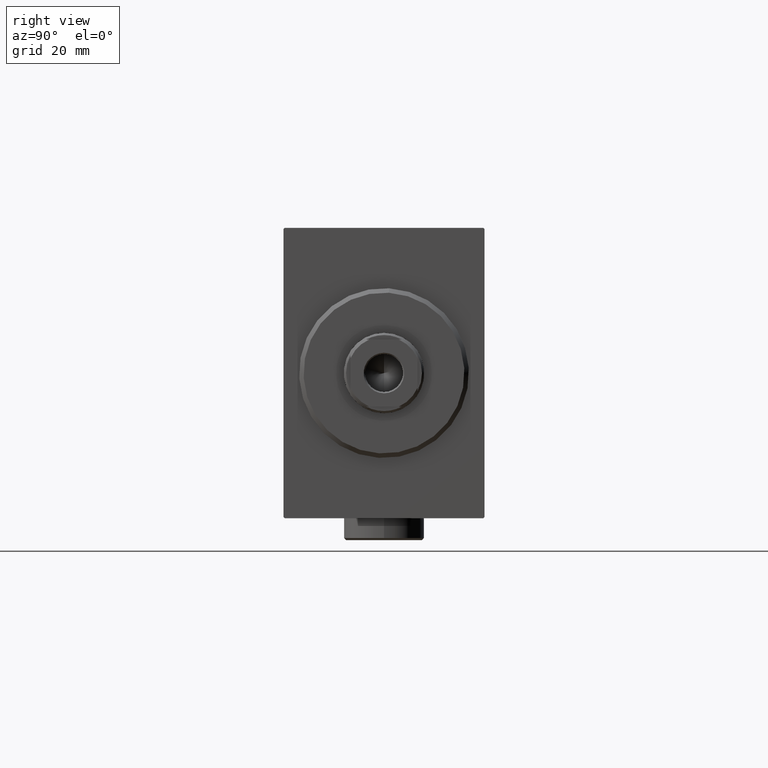
[diagram: clean part render]
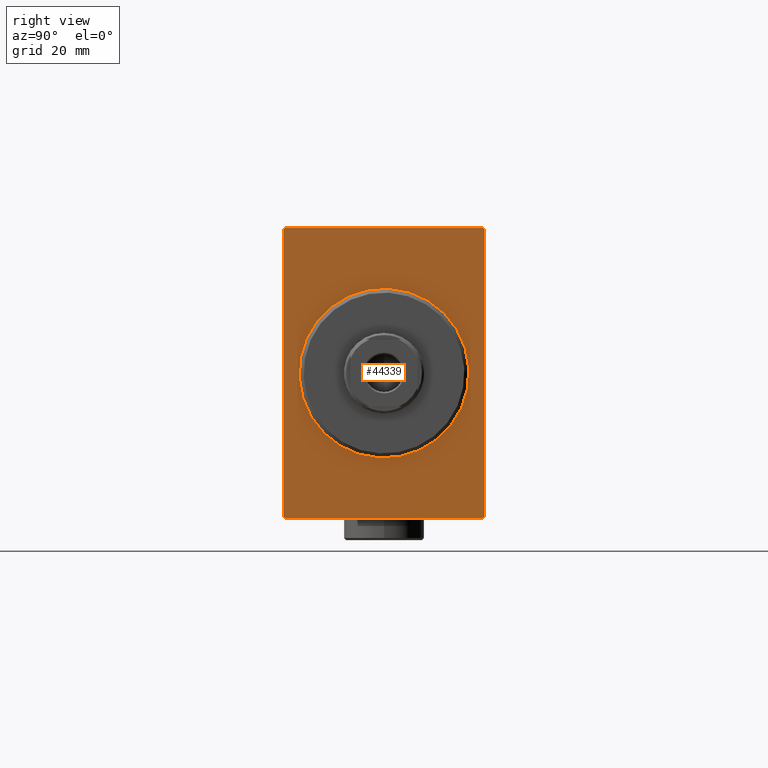
[diagram: same view with one face highlighted and labeled with its STEP entity id]
A machine part, right view. The second image highlights one B-rep face of the part: STEP entity #44339.
In plain terms, the highlighted planar face has unit normal (-1, -0, 0).
Its self-contained STEP definition (entity closure, byte-faithful):
#38 = CIRCLE ( 'NONE', #25201, 18.50000000000003197 ) ;
#288 = AXIS2_PLACEMENT_3D ( 'NONE', #40608, #20342, #31574 ) ;
#663 = DIRECTION ( 'NONE',  ( 0.000000000000000000, -0.7071067811865474617, -0.7071067811865474617 ) ) ;
#1535 = VERTEX_POINT ( 'NONE', #21677 ) ;
#1566 = ORIENTED_EDGE ( 'NONE', *, *, #33677, .F. ) ;
#2368 = EDGE_CURVE ( 'NONE', #28749, #8413, #19660, .T. ) ;
#2793 = PLANE ( 'NONE',  #288 ) ;
#2922 = CARTESIAN_POINT ( 'NONE',  ( 0.000000000000000000, -22.20000000000001350, -32.50000000000000000 ) ) ;
#3323 = ORIENTED_EDGE ( 'NONE', *, *, #39690, .F. ) ;
#4311 = CARTESIAN_POINT ( 'NONE',  ( 0.000000000000000000, 22.20000000000000639, -32.50000000000000000 ) ) ;
#4458 = VERTEX_POINT ( 'NONE', #12300 ) ;
#5659 = ORIENTED_EDGE ( 'NONE', *, *, #27980, .T. ) ;
#6173 = FACE_OUTER_BOUND ( 'NONE', #40281, .T. ) ;
#6246 = CARTESIAN_POINT ( 'NONE',  ( 0.000000000000000000, -22.49999999999999645, 32.20000000000001705 ) ) ;
#6466 = VECTOR ( 'NONE', #663, 1000.000000000000114 ) ;
#7865 = ORIENTED_EDGE ( 'NONE', *, *, #30559, .F. ) ;
#8039 = VERTEX_POINT ( 'NONE', #19923 ) ;
#8069 = VECTOR ( 'NONE', #22756, 1000.000000000000000 ) ;
#8413 = VERTEX_POINT ( 'NONE', #40137 ) ;
#8806 = EDGE_CURVE ( 'NONE', #32329, #4458, #43256, .T. ) ;
#8964 = DIRECTION ( 'NONE',  ( 0.000000000000000000, 1.000000000000000000, 0.000000000000000000 ) ) ;
#9073 = EDGE_CURVE ( 'NONE', #16232, #21877, #36170, .T. ) ;
#9769 = FACE_BOUND ( 'NONE', #12648, .T. ) ;
#10426 = LINE ( 'NONE', #23494, #22563 ) ;
#11462 = CIRCLE ( 'NONE', #12174, 18.50000000000003197 ) ;
#12174 = AXIS2_PLACEMENT_3D ( 'NONE', #31268, #14154, #41618 ) ;
#12300 = CARTESIAN_POINT ( 'NONE',  ( 0.000000000000000000, 22.49999999999999645, 32.20000000000003126 ) ) ;
#12648 = EDGE_LOOP ( 'NONE', ( #5659, #25194 ) ) ;
#12714 = DIRECTION ( 'NONE',  ( 0.000000000000000000, 0.000000000000000000, -1.000000000000000000 ) ) ;
#13351 = DIRECTION ( 'NONE',  ( 0.000000000000000000, 0.000000000000000000, -1.000000000000000000 ) ) ;
#13652 = VECTOR ( 'NONE', #30672, 1000.000000000000114 ) ;
#14154 = DIRECTION ( 'NONE',  ( 1.000000000000000000, 0.000000000000000000, 0.000000000000000000 ) ) ;
#16232 = VERTEX_POINT ( 'NONE', #6246 ) ;
#18448 = ORIENTED_EDGE ( 'NONE', *, *, #2368, .T. ) ;
#18879 = CARTESIAN_POINT ( 'NONE',  ( 0.000000000000000000, 22.20000000000001350, 32.50000000000000711 ) ) ;
#19660 = LINE ( 'NONE', #23254, #13652 ) ;
#19734 = VECTOR ( 'NONE', #13351, 1000.000000000000000 ) ;
#19923 = CARTESIAN_POINT ( 'NONE',  ( 0.000000000000000000, 0.000000000000000000, 18.50000000000003197 ) ) ;
#20114 = DIRECTION ( 'NONE',  ( 0.000000000000000000, -1.067522139062650425E-16, 1.000000000000000000 ) ) ;
#20131 = DIRECTION ( 'NONE',  ( 1.000000000000000000, 0.000000000000000000, 0.000000000000000000 ) ) ;
#20342 = DIRECTION ( 'NONE',  ( 1.000000000000000000, 0.000000000000000000, 0.000000000000000000 ) ) ;
#20443 = CARTESIAN_POINT ( 'NONE',  ( 0.000000000000000000, 22.50000000000000355, -32.20000000000001705 ) ) ;
#21677 = CARTESIAN_POINT ( 'NONE',  ( 0.000000000000000000, 2.265596578422607341E-15, -18.50000000000003197 ) ) ;
#21826 = LINE ( 'NONE', #24312, #6466 ) ;
#21877 = VERTEX_POINT ( 'NONE', #22113 ) ;
#22113 = CARTESIAN_POINT ( 'NONE',  ( 0.000000000000000000, -22.19999999999999929, 32.50000000000000000 ) ) ;
#22563 = VECTOR ( 'NONE', #20114, 1000.000000000000000 ) ;
#22756 = DIRECTION ( 'NONE',  ( -0.000000000000000000, 0.7071067811865556774, -0.7071067811865393571 ) ) ;
#22870 = ORIENTED_EDGE ( 'NONE', *, *, #42738, .F. ) ;
#23254 = CARTESIAN_POINT ( 'NONE',  ( 0.000000000000000000, -22.20000000000001350, -32.50000000000000000 ) ) ;
#23494 = CARTESIAN_POINT ( 'NONE',  ( 0.000000000000000000, 22.50000000000000355, -32.50000000000000000 ) ) ;
#24063 = EDGE_CURVE ( 'NONE', #39211, #42597, #21826, .T. ) ;
#24312 = CARTESIAN_POINT ( 'NONE',  ( 0.000000000000000000, 22.50000000000000355, -32.20000000000001705 ) ) ;
#25194 = ORIENTED_EDGE ( 'NONE', *, *, #26699, .T. ) ;
#25201 = AXIS2_PLACEMENT_3D ( 'NONE', #43575, #20131, #12714 ) ;
#25848 = LINE ( 'NONE', #26081, #38163 ) ;
#26081 = CARTESIAN_POINT ( 'NONE',  ( 0.000000000000000000, -22.49999999999999645, -32.50000000000000000 ) ) ;
#26138 = CARTESIAN_POINT ( 'NONE',  ( 0.000000000000000000, 22.20000000000001350, 32.50000000000000711 ) ) ;
#26699 = EDGE_CURVE ( 'NONE', #1535, #8039, #38, .T. ) ;
#27980 = EDGE_CURVE ( 'NONE', #8039, #1535, #11462, .T. ) ;
#28749 = VERTEX_POINT ( 'NONE', #2922 ) ;
#29177 = CARTESIAN_POINT ( 'NONE',  ( 0.000000000000000000, -22.49999999999999645, 32.20000000000001705 ) ) ;
#30559 = EDGE_CURVE ( 'NONE', #28749, #42597, #25848, .T. ) ;
#30672 = DIRECTION ( 'NONE',  ( -0.000000000000000000, -0.7071067811865474617, 0.7071067811865474617 ) ) ;
#31268 = CARTESIAN_POINT ( 'NONE',  ( 0.000000000000000000, 0.000000000000000000, 0.000000000000000000 ) ) ;
#31574 = DIRECTION ( 'NONE',  ( 0.000000000000000000, 0.000000000000000000, -1.000000000000000000 ) ) ;
#32329 = VERTEX_POINT ( 'NONE', #18879 ) ;
#33677 = EDGE_CURVE ( 'NONE', #32329, #21877, #38394, .T. ) ;
#34507 = CARTESIAN_POINT ( 'NONE',  ( 0.000000000000000000, -22.49999999999999645, 32.50000000000000000 ) ) ;
#35663 = ORIENTED_EDGE ( 'NONE', *, *, #24063, .T. ) ;
#35684 = DIRECTION ( 'NONE',  ( 0.000000000000000000, -1.000000000000000000, -1.541976423090495633E-16 ) ) ;
#36136 = VECTOR ( 'NONE', #42912, 1000.000000000000114 ) ;
#36170 = LINE ( 'NONE', #29177, #36136 ) ;
#37499 = VECTOR ( 'NONE', #35684, 1000.000000000000000 ) ;
#37704 = ORIENTED_EDGE ( 'NONE', *, *, #8806, .T. ) ;
#38163 = VECTOR ( 'NONE', #8964, 1000.000000000000000 ) ;
#38394 = LINE ( 'NONE', #42427, #37499 ) ;
#39211 = VERTEX_POINT ( 'NONE', #20443 ) ;
#39690 = EDGE_CURVE ( 'NONE', #39211, #4458, #10426, .T. ) ;
#40137 = CARTESIAN_POINT ( 'NONE',  ( 0.000000000000000000, -22.49999999999999645, -32.20000000000001705 ) ) ;
#40281 = EDGE_LOOP ( 'NONE', ( #1566, #37704, #3323, #35663, #7865, #18448, #22870, #42951 ) ) ;
#40608 = CARTESIAN_POINT ( 'NONE',  ( 0.000000000000000000, 0.000000000000000000, 0.000000000000000000 ) ) ;
#41482 = LINE ( 'NONE', #34507, #19734 ) ;
#41618 = DIRECTION ( 'NONE',  ( 0.000000000000000000, 0.000000000000000000, -1.000000000000000000 ) ) ;
#42427 = CARTESIAN_POINT ( 'NONE',  ( 0.000000000000000000, 22.49999999999999645, 32.50000000000000711 ) ) ;
#42597 = VERTEX_POINT ( 'NONE', #4311 ) ;
#42738 = EDGE_CURVE ( 'NONE', #16232, #8413, #41482, .T. ) ;
#42912 = DIRECTION ( 'NONE',  ( -0.000000000000000000, 0.7071067811865474617, 0.7071067811865474617 ) ) ;
#42951 = ORIENTED_EDGE ( 'NONE', *, *, #9073, .T. ) ;
#43256 = LINE ( 'NONE', #26138, #8069 ) ;
#43575 = CARTESIAN_POINT ( 'NONE',  ( 0.000000000000000000, 0.000000000000000000, 0.000000000000000000 ) ) ;
#44339 = ADVANCED_FACE ( 'NONE', ( #9769, #6173 ), #2793, .F. ) ;